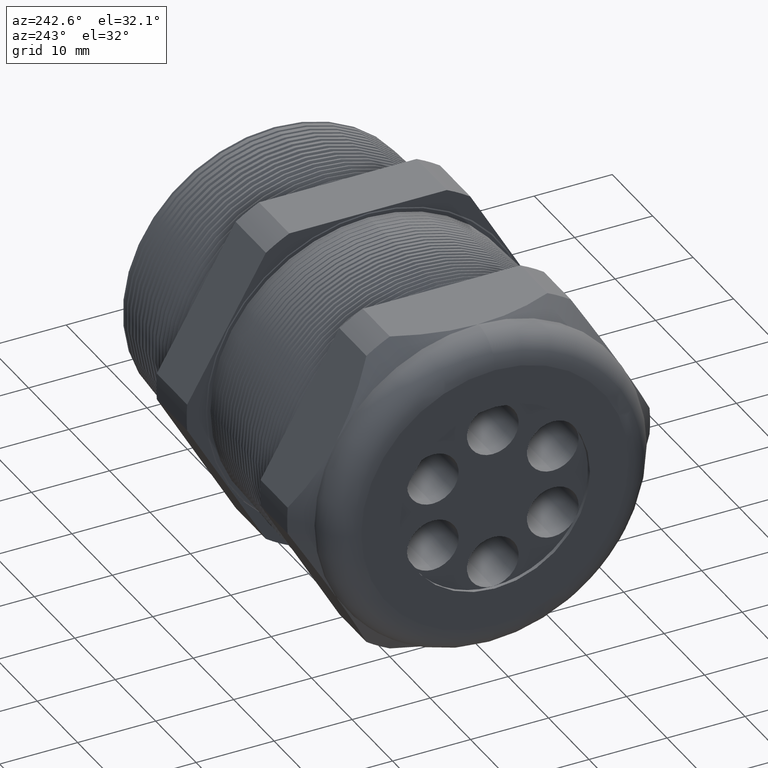
[diagram: clean part render]
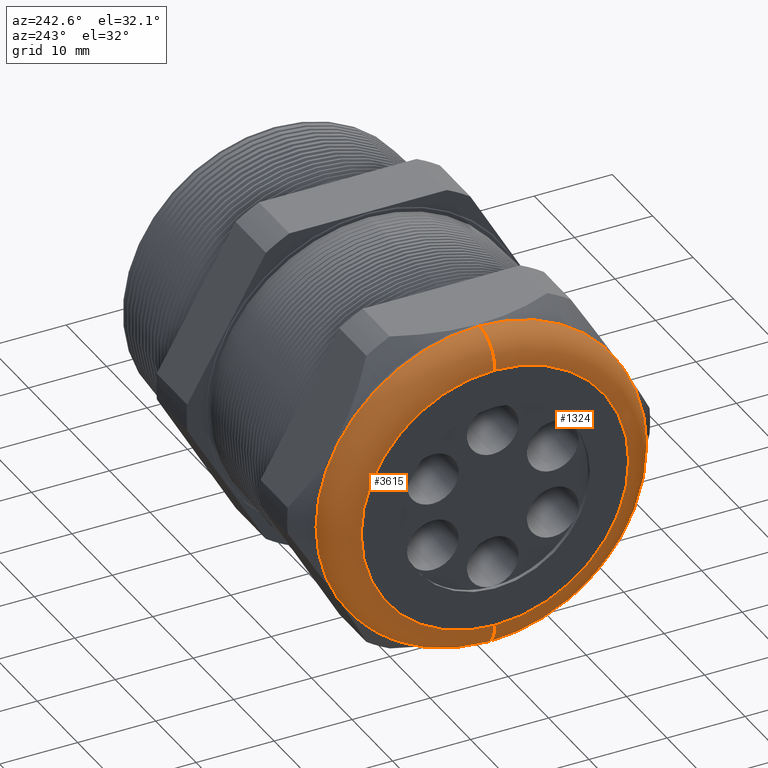
[diagram: same view with one multi-face feature highlighted, each face labeled with its STEP entity id]
A machine part, auxiliary view. The highlighted faces form ONE feature: a constant-radius fillet chain: 2 tangent blend faces with common blend radius 3.81 mm. The faces share edges in the B-rep.
Their STEP definitions:
[1] entity #3615 (Torus):
#3598 = ORIENTED_EDGE ( 'NONE', *, *, #3676, .F. ) ;
#3615 = ADVANCED_FACE ( 'NONE', ( #4531 ), #4525, .T. ) ;
#3626 = EDGE_CURVE ( 'NONE', #3748, #3698, #4585, .T. ) ;
#3676 = EDGE_CURVE ( 'NONE', #3732, #3743, #4571, .T. ) ;
#3684 = EDGE_LOOP ( 'NONE', ( #3725, #3815, #3827, #3598 ) ) ;
#3698 = VERTEX_POINT ( 'NONE', #4561 ) ;
#3725 = ORIENTED_EDGE ( 'NONE', *, *, #3782, .F. ) ;
#3732 = VERTEX_POINT ( 'NONE', #4560 ) ;
#3743 = VERTEX_POINT ( 'NONE', #4559 ) ;
#3748 = VERTEX_POINT ( 'NONE', #4558 ) ;
#3782 = EDGE_CURVE ( 'NONE', #3748, #3732, #4617, .T. ) ;
#3795 = EDGE_CURVE ( 'NONE', #3743, #3698, #4610, .T. ) ;
#3815 = ORIENTED_EDGE ( 'NONE', *, *, #3626, .T. ) ;
#3827 = ORIENTED_EDGE ( 'NONE', *, *, #3795, .F. ) ;
#4525 = TOROIDAL_SURFACE ( 'NONE', #4526, 0.6749999999999997100, 0.1499999999999999900 ) ;
#4526 = AXIS2_PLACEMENT_3D ( 'NONE', #4588, #4587, #4586 ) ;
#4531 = FACE_OUTER_BOUND ( 'NONE', #3684, .T. ) ;
#4558 = CARTESIAN_POINT ( 'NONE',  ( -1.689999999999999900, 0.0000000000000000000, -0.8249999999999998400 ) ) ;
#4559 = CARTESIAN_POINT ( 'NONE',  ( -1.840000000000000100, 0.0000000000000000000, 0.6749999999999997100 ) ) ;
#4560 = CARTESIAN_POINT ( 'NONE',  ( -1.689999999999999900, 1.010333609296566100E-016, 0.8249999999999998400 ) ) ;
#4561 = CARTESIAN_POINT ( 'NONE',  ( -1.840000000000000100, 9.184850993605146000E-017, -0.6749999999999997100 ) ) ;
#4567 = DIRECTION ( 'NONE',  ( 0.0000000000000000000, 0.0000000000000000000, -1.000000000000000000 ) ) ;
#4568 = DIRECTION ( 'NONE',  ( 0.0000000000000000000, -1.000000000000000000, 0.0000000000000000000 ) ) ;
#4569 = CARTESIAN_POINT ( 'NONE',  ( -1.689999999999999900, 0.0000000000000000000, 0.6749999999999997100 ) ) ;
#4570 = AXIS2_PLACEMENT_3D ( 'NONE', #4569, #4568, #4567 ) ;
#4571 = CIRCLE ( 'NONE', #4570, 0.1499999999999999700 ) ;
#4581 = DIRECTION ( 'NONE',  ( 0.0000000000000000000, -1.224646799147353200E-016, 1.000000000000000000 ) ) ;
#4582 = DIRECTION ( 'NONE',  ( 0.0000000000000000000, 1.000000000000000000, 1.224646799147353200E-016 ) ) ;
#4583 = CARTESIAN_POINT ( 'NONE',  ( -1.689999999999999900, 8.266365894244631900E-017, -0.6749999999999997100 ) ) ;
#4584 = AXIS2_PLACEMENT_3D ( 'NONE', #4583, #4582, #4581 ) ;
#4585 = CIRCLE ( 'NONE', #4584, 0.1499999999999999700 ) ;
#4586 = DIRECTION ( 'NONE',  ( 0.0000000000000000000, 0.0000000000000000000, 1.000000000000000000 ) ) ;
#4587 = DIRECTION ( 'NONE',  ( -1.000000000000000000, 0.0000000000000000000, 0.0000000000000000000 ) ) ;
#4588 = CARTESIAN_POINT ( 'NONE',  ( -1.689999999999999900, 0.0000000000000000000, 0.0000000000000000000 ) ) ;
#4605 = DIRECTION ( 'NONE',  ( 0.0000000000000000000, 0.0000000000000000000, 1.000000000000000000 ) ) ;
#4607 = DIRECTION ( 'NONE',  ( -1.000000000000000000, 0.0000000000000000000, 0.0000000000000000000 ) ) ;
#4608 = CARTESIAN_POINT ( 'NONE',  ( -1.840000000000000100, 0.0000000000000000000, 0.0000000000000000000 ) ) ;
#4609 = AXIS2_PLACEMENT_3D ( 'NONE', #4608, #4607, #4605 ) ;
#4610 = CIRCLE ( 'NONE', #4609, 0.6749999999999997100 ) ;
#4613 = DIRECTION ( 'NONE',  ( 0.0000000000000000000, 0.0000000000000000000, 1.000000000000000000 ) ) ;
#4614 = DIRECTION ( 'NONE',  ( 1.000000000000000000, 0.0000000000000000000, 0.0000000000000000000 ) ) ;
#4615 = CARTESIAN_POINT ( 'NONE',  ( -1.689999999999999900, 0.0000000000000000000, 0.0000000000000000000 ) ) ;
#4616 = AXIS2_PLACEMENT_3D ( 'NONE', #4615, #4614, #4613 ) ;
#4617 = CIRCLE ( 'NONE', #4616, 0.8249999999999998400 ) ;
[2] entity #1324 (Torus):
#1204 = EDGE_CURVE ( 'NONE', #3698, #3743, #3939, .T. ) ;
#1216 = EDGE_CURVE ( 'NONE', #3732, #3748, #3986, .T. ) ;
#1324 = ADVANCED_FACE ( 'NONE', ( #4089 ), #4158, .T. ) ;
#1325 = EDGE_LOOP ( 'NONE', ( #1326, #1380, #1381, #1382 ) ) ;
#1326 = ORIENTED_EDGE ( 'NONE', *, *, #3626, .F. ) ;
#1380 = ORIENTED_EDGE ( 'NONE', *, *, #1216, .F. ) ;
#1381 = ORIENTED_EDGE ( 'NONE', *, *, #3676, .T. ) ;
#1382 = ORIENTED_EDGE ( 'NONE', *, *, #1204, .F. ) ;
#3626 = EDGE_CURVE ( 'NONE', #3748, #3698, #4585, .T. ) ;
#3676 = EDGE_CURVE ( 'NONE', #3732, #3743, #4571, .T. ) ;
#3698 = VERTEX_POINT ( 'NONE', #4561 ) ;
#3732 = VERTEX_POINT ( 'NONE', #4560 ) ;
#3743 = VERTEX_POINT ( 'NONE', #4559 ) ;
#3748 = VERTEX_POINT ( 'NONE', #4558 ) ;
#3927 = CARTESIAN_POINT ( 'NONE',  ( -1.689999999999999900, 0.0000000000000000000, 0.0000000000000000000 ) ) ;
#3935 = DIRECTION ( 'NONE',  ( 0.0000000000000000000, 0.0000000000000000000, 1.000000000000000000 ) ) ;
#3936 = DIRECTION ( 'NONE',  ( -1.000000000000000000, 0.0000000000000000000, 0.0000000000000000000 ) ) ;
#3937 = CARTESIAN_POINT ( 'NONE',  ( -1.840000000000000100, 0.0000000000000000000, 0.0000000000000000000 ) ) ;
#3938 = AXIS2_PLACEMENT_3D ( 'NONE', #3937, #3936, #3935 ) ;
#3939 = CIRCLE ( 'NONE', #3938, 0.6749999999999997100 ) ;
#3983 = DIRECTION ( 'NONE',  ( 0.0000000000000000000, 0.0000000000000000000, 1.000000000000000000 ) ) ;
#3984 = DIRECTION ( 'NONE',  ( 1.000000000000000000, 0.0000000000000000000, 0.0000000000000000000 ) ) ;
#3985 = AXIS2_PLACEMENT_3D ( 'NONE', #3927, #3984, #3983 ) ;
#3986 = CIRCLE ( 'NONE', #3985, 0.8249999999999998400 ) ;
#4089 = FACE_OUTER_BOUND ( 'NONE', #1325, .T. ) ;
#4154 = DIRECTION ( 'NONE',  ( 0.0000000000000000000, 0.0000000000000000000, 1.000000000000000000 ) ) ;
#4155 = DIRECTION ( 'NONE',  ( -1.000000000000000000, 0.0000000000000000000, 0.0000000000000000000 ) ) ;
#4156 = CARTESIAN_POINT ( 'NONE',  ( -1.689999999999999900, 0.0000000000000000000, 0.0000000000000000000 ) ) ;
#4157 = AXIS2_PLACEMENT_3D ( 'NONE', #4156, #4155, #4154 ) ;
#4158 = TOROIDAL_SURFACE ( 'NONE', #4157, 0.6749999999999997100, 0.1499999999999999900 ) ;
#4558 = CARTESIAN_POINT ( 'NONE',  ( -1.689999999999999900, 0.0000000000000000000, -0.8249999999999998400 ) ) ;
#4559 = CARTESIAN_POINT ( 'NONE',  ( -1.840000000000000100, 0.0000000000000000000, 0.6749999999999997100 ) ) ;
#4560 = CARTESIAN_POINT ( 'NONE',  ( -1.689999999999999900, 1.010333609296566100E-016, 0.8249999999999998400 ) ) ;
#4561 = CARTESIAN_POINT ( 'NONE',  ( -1.840000000000000100, 9.184850993605146000E-017, -0.6749999999999997100 ) ) ;
#4567 = DIRECTION ( 'NONE',  ( 0.0000000000000000000, 0.0000000000000000000, -1.000000000000000000 ) ) ;
#4568 = DIRECTION ( 'NONE',  ( 0.0000000000000000000, -1.000000000000000000, 0.0000000000000000000 ) ) ;
#4569 = CARTESIAN_POINT ( 'NONE',  ( -1.689999999999999900, 0.0000000000000000000, 0.6749999999999997100 ) ) ;
#4570 = AXIS2_PLACEMENT_3D ( 'NONE', #4569, #4568, #4567 ) ;
#4571 = CIRCLE ( 'NONE', #4570, 0.1499999999999999700 ) ;
#4581 = DIRECTION ( 'NONE',  ( 0.0000000000000000000, -1.224646799147353200E-016, 1.000000000000000000 ) ) ;
#4582 = DIRECTION ( 'NONE',  ( 0.0000000000000000000, 1.000000000000000000, 1.224646799147353200E-016 ) ) ;
#4583 = CARTESIAN_POINT ( 'NONE',  ( -1.689999999999999900, 8.266365894244631900E-017, -0.6749999999999997100 ) ) ;
#4584 = AXIS2_PLACEMENT_3D ( 'NONE', #4583, #4582, #4581 ) ;
#4585 = CIRCLE ( 'NONE', #4584, 0.1499999999999999700 ) ;